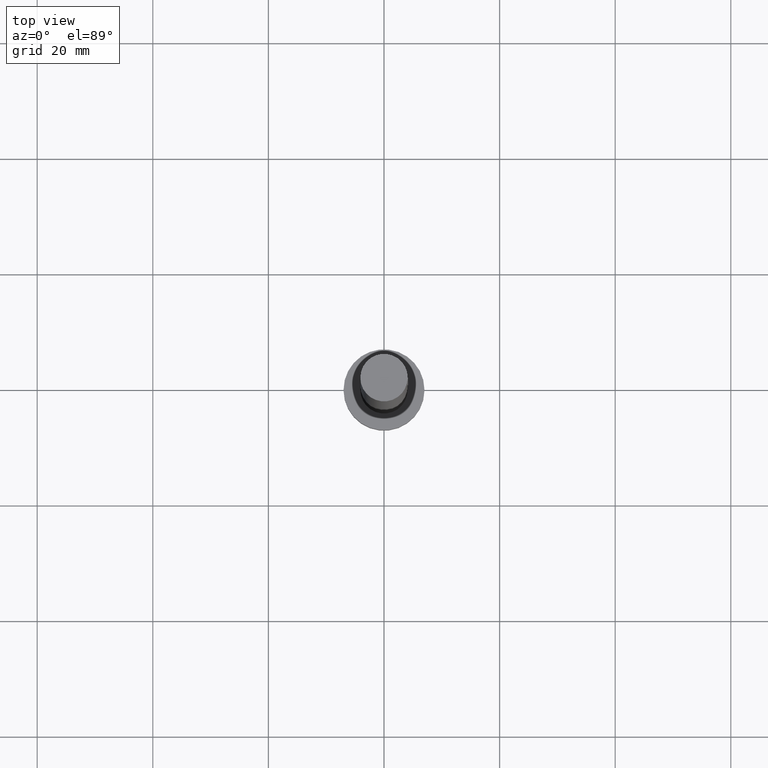
[diagram: clean part render]
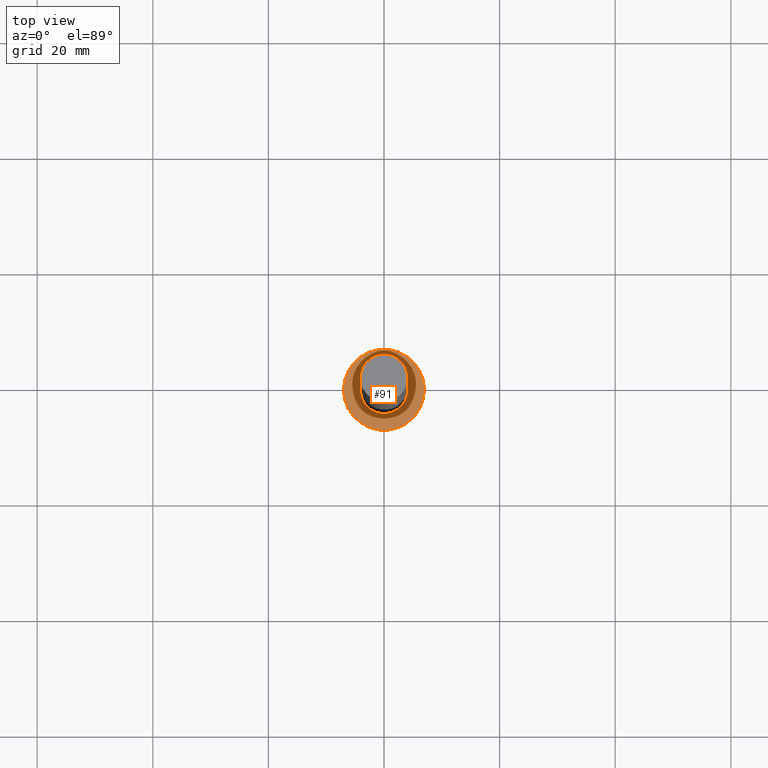
[diagram: same view with one face highlighted and labeled with its STEP entity id]
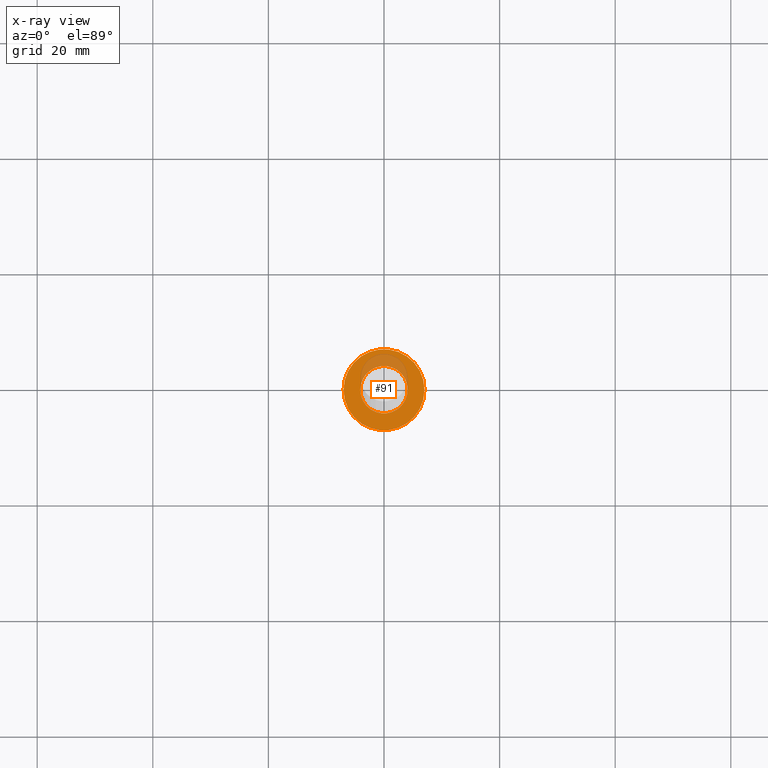
[diagram: x-ray of the same camera — body ghosted, the highlighted face saturated]
A machine part, top view. The second image highlights one B-rep face of the part: STEP entity #91.
The next image is the same camera in x-ray: the body ghosted, the highlighted face saturated — about 17% of this face is hidden behind the body in this view.
In plain terms, the highlighted planar face has unit normal (0, 0, 1).
Its self-contained STEP definition (entity closure, byte-faithful):
#15 = FACE_BOUND ( 'NONE', #118, .T. ) ;
#18 = CIRCLE ( 'NONE', #209, 4.099999999999999645 ) ;
#19 = VERTEX_POINT ( 'NONE', #199 ) ;
#22 = CIRCLE ( 'NONE', #142, 4.099999999999999645 ) ;
#25 = DIRECTION ( 'NONE',  ( 1.000000000000000000, 0.000000000000000000, 0.000000000000000000 ) ) ;
#29 = DIRECTION ( 'NONE',  ( 0.000000000000000000, 0.000000000000000000, 1.000000000000000000 ) ) ;
#32 = CARTESIAN_POINT ( 'NONE',  ( 0.000000000000000000, 0.000000000000000000, 5.000000000000000000 ) ) ;
#38 = VERTEX_POINT ( 'NONE', #213 ) ;
#45 = AXIS2_PLACEMENT_3D ( 'NONE', #83, #76, #173 ) ;
#48 = AXIS2_PLACEMENT_3D ( 'NONE', #96, #169, #204 ) ;
#58 = DIRECTION ( 'NONE',  ( 1.000000000000000000, 0.000000000000000000, 0.000000000000000000 ) ) ;
#63 = CARTESIAN_POINT ( 'NONE',  ( 4.099999999999999645, 5.021051876504147385E-16, 5.000000000000000000 ) ) ;
#65 = CIRCLE ( 'NONE', #45, 7.000000000000000000 ) ;
#71 = EDGE_CURVE ( 'NONE', #198, #116, #22, .T. ) ;
#76 = DIRECTION ( 'NONE',  ( 0.000000000000000000, 0.000000000000000000, 1.000000000000000000 ) ) ;
#77 = CARTESIAN_POINT ( 'NONE',  ( -4.099999999999999645, 0.000000000000000000, 5.000000000000000000 ) ) ;
#83 = CARTESIAN_POINT ( 'NONE',  ( 0.000000000000000000, 0.000000000000000000, 5.000000000000000000 ) ) ;
#86 = FACE_OUTER_BOUND ( 'NONE', #92, .T. ) ;
#91 = ADVANCED_FACE ( 'NONE', ( #15, #86 ), #175, .T. ) ;
#92 = EDGE_LOOP ( 'NONE', ( #227, #163 ) ) ;
#96 = CARTESIAN_POINT ( 'NONE',  ( 0.000000000000000000, 0.000000000000000000, 5.000000000000000000 ) ) ;
#116 = VERTEX_POINT ( 'NONE', #77 ) ;
#118 = EDGE_LOOP ( 'NONE', ( #242, #182 ) ) ;
#127 = EDGE_CURVE ( 'NONE', #19, #38, #139, .T. ) ;
#130 = AXIS2_PLACEMENT_3D ( 'NONE', #32, #254, #210 ) ;
#139 = CIRCLE ( 'NONE', #48, 7.000000000000000000 ) ;
#142 = AXIS2_PLACEMENT_3D ( 'NONE', #223, #203, #25 ) ;
#152 = EDGE_CURVE ( 'NONE', #116, #198, #18, .T. ) ;
#163 = ORIENTED_EDGE ( 'NONE', *, *, #127, .T. ) ;
#169 = DIRECTION ( 'NONE',  ( 0.000000000000000000, 0.000000000000000000, 1.000000000000000000 ) ) ;
#173 = DIRECTION ( 'NONE',  ( 1.000000000000000000, 0.000000000000000000, 0.000000000000000000 ) ) ;
#175 = PLANE ( 'NONE',  #130 ) ;
#182 = ORIENTED_EDGE ( 'NONE', *, *, #71, .F. ) ;
#198 = VERTEX_POINT ( 'NONE', #63 ) ;
#199 = CARTESIAN_POINT ( 'NONE',  ( 7.000000000000000000, 8.572527594031473190E-16, 5.000000000000000000 ) ) ;
#203 = DIRECTION ( 'NONE',  ( 0.000000000000000000, 0.000000000000000000, 1.000000000000000000 ) ) ;
#204 = DIRECTION ( 'NONE',  ( 1.000000000000000000, 0.000000000000000000, 0.000000000000000000 ) ) ;
#209 = AXIS2_PLACEMENT_3D ( 'NONE', #222, #29, #58 ) ;
#210 = DIRECTION ( 'NONE',  ( 1.000000000000000000, 0.000000000000000000, -0.000000000000000000 ) ) ;
#213 = CARTESIAN_POINT ( 'NONE',  ( -7.000000000000000000, 0.000000000000000000, 5.000000000000000000 ) ) ;
#220 = EDGE_CURVE ( 'NONE', #38, #19, #65, .T. ) ;
#222 = CARTESIAN_POINT ( 'NONE',  ( 0.000000000000000000, 0.000000000000000000, 5.000000000000000000 ) ) ;
#223 = CARTESIAN_POINT ( 'NONE',  ( 0.000000000000000000, 0.000000000000000000, 5.000000000000000000 ) ) ;
#227 = ORIENTED_EDGE ( 'NONE', *, *, #220, .T. ) ;
#242 = ORIENTED_EDGE ( 'NONE', *, *, #152, .F. ) ;
#254 = DIRECTION ( 'NONE',  ( 0.000000000000000000, 0.000000000000000000, 1.000000000000000000 ) ) ;